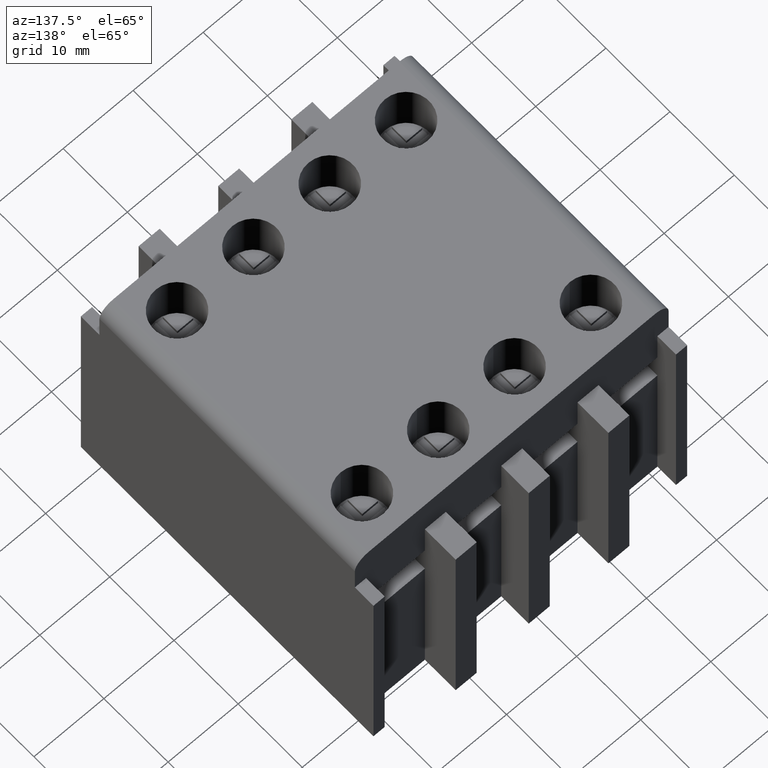
[diagram: clean part render]
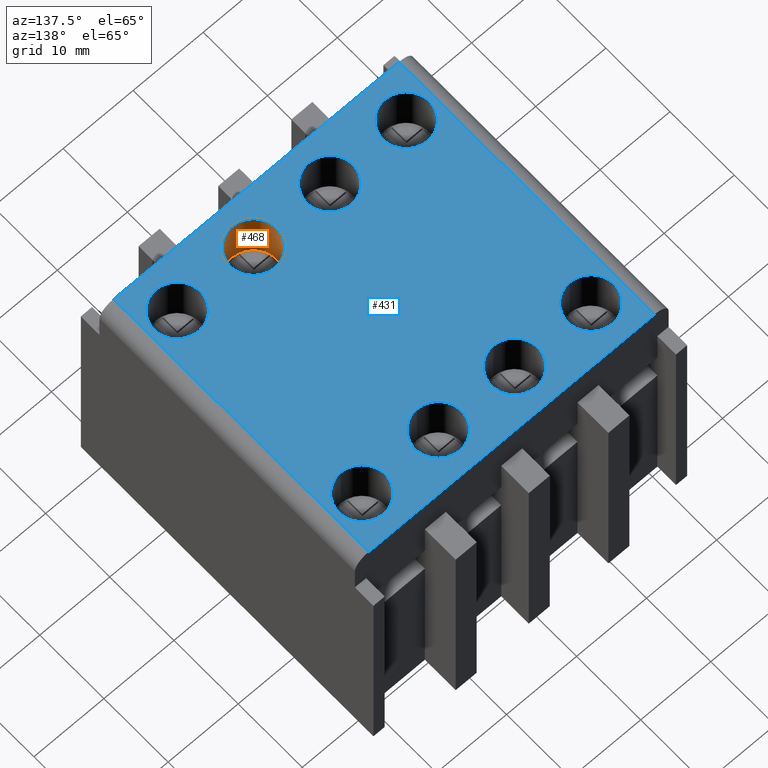
[diagram: same view with the hole feature highlighted: cylindrical wall and planar end face, labeled with their STEP entity ids]
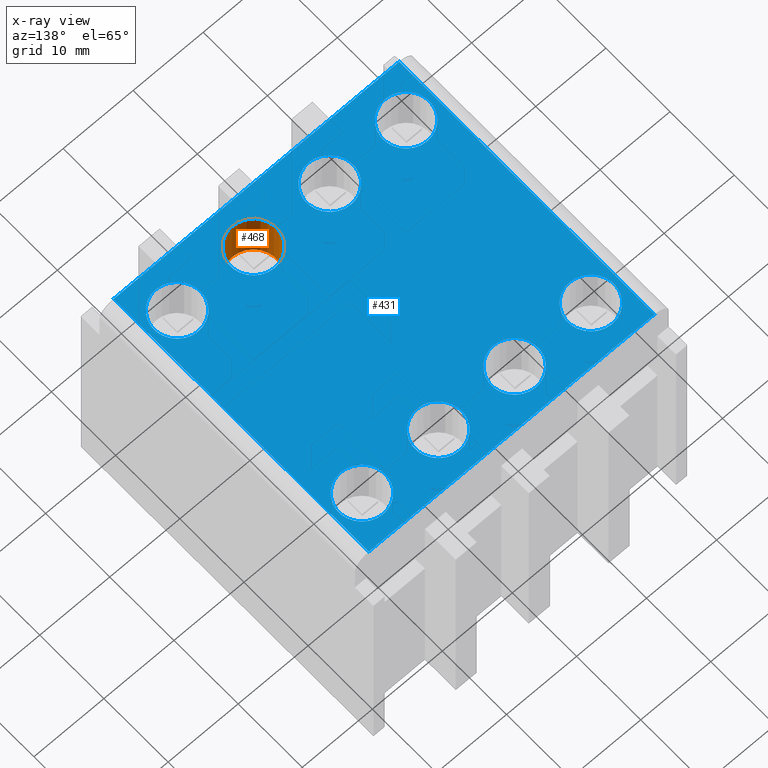
[diagram: x-ray of the same camera — body ghosted, the hole faces saturated]
A machine part, auxiliary view. The highlighted faces form one hole feature of diameter 6.6 mm: the cylindrical wall (entity #468, orange) and its adjacent planar end face (entity #431, blue) — they share a circular edge in the B-rep.
The next image is the same camera in x-ray (body ghosted, the hole faces saturated) — the bore reads through the body.
Wall:
#100=CYLINDRICAL_SURFACE('',#4622,3.3);
#330=CIRCLE('',#4559,3.3);
#341=CIRCLE('',#4574,3.3);
#468=ADVANCED_FACE('',(#911,#912),#100,.F.);
#911=FACE_BOUND('',#1055,.T.);
#912=FACE_BOUND('',#1056,.T.);
#1055=EDGE_LOOP('',(#1619));
#1056=EDGE_LOOP('',(#1620));
#1619=ORIENTED_EDGE('',*,*,#3039,.F.);
#1620=ORIENTED_EDGE('',*,*,#3054,.T.);
#2619=VERTEX_POINT('',#6328);
#2634=VERTEX_POINT('',#6362);
#3039=EDGE_CURVE('',#2619,#2619,#330,.T.);
#3054=EDGE_CURVE('',#2634,#2634,#341,.T.);
#4559=AXIS2_PLACEMENT_3D('',#6327,#5039,#5040);
#4574=AXIS2_PLACEMENT_3D('',#6361,#5073,#5074);
#4622=AXIS2_PLACEMENT_3D('',#6542,#5249,#5250);
#5039=DIRECTION('',(0.,0.,1.));
#5040=DIRECTION('',(0.,1.,0.));
#5073=DIRECTION('',(0.,0.,1.));
#5074=DIRECTION('',(0.,1.,0.));
#5249=DIRECTION('',(0.,0.,1.));
#5250=DIRECTION('',(1.,0.,0.));
#6327=CARTESIAN_POINT('',(5.45,-14.4,106.3));
#6328=CARTESIAN_POINT('',(5.45,-11.1,106.3));
#6361=CARTESIAN_POINT('',(5.45,-14.4,114.));
#6362=CARTESIAN_POINT('',(5.45,-11.1,114.));
#6542=CARTESIAN_POINT('',(5.45,-14.4,106.3));
End face:
#338=CIRCLE('',#4571,3.29999999999999);
#339=CIRCLE('',#4572,3.3);
#340=CIRCLE('',#4573,3.3);
#341=CIRCLE('',#4574,3.3);
#342=CIRCLE('',#4575,3.29999999999999);
#343=CIRCLE('',#4576,3.3);
#344=CIRCLE('',#4577,3.3);
#345=CIRCLE('',#4578,3.3);
#431=ADVANCED_FACE('',(#888,#889,#890,#891,#892,#893,#894,#895,#896),#668,
 .F.);
#668=PLANE('',#4579);
#888=FACE_BOUND('',#1003,.T.);
#889=FACE_BOUND('',#1004,.T.);
#890=FACE_BOUND('',#1005,.T.);
#891=FACE_BOUND('',#1006,.T.);
#892=FACE_BOUND('',#1007,.T.);
#893=FACE_BOUND('',#1008,.T.);
#894=FACE_BOUND('',#1009,.T.);
#895=FACE_BOUND('',#1010,.T.);
#896=FACE_BOUND('',#1011,.T.);
#1003=EDGE_LOOP('',(#1407));
#1004=EDGE_LOOP('',(#1408));
#1005=EDGE_LOOP('',(#1409,#1410,#1411,#1412));
#1006=EDGE_LOOP('',(#1413));
#1007=EDGE_LOOP('',(#1414));
#1008=EDGE_LOOP('',(#1415));
#1009=EDGE_LOOP('',(#1416));
#1010=EDGE_LOOP('',(#1417));
#1011=EDGE_LOOP('',(#1418));
#1407=ORIENTED_EDGE('',*,*,#3047,.F.);
#1408=ORIENTED_EDGE('',*,*,#3048,.F.);
#1409=ORIENTED_EDGE('',*,*,#3049,.F.);
#1410=ORIENTED_EDGE('',*,*,#3050,.T.);
#1411=ORIENTED_EDGE('',*,*,#3051,.T.);
#1412=ORIENTED_EDGE('',*,*,#3052,.T.);
#1413=ORIENTED_EDGE('',*,*,#3053,.F.);
#1414=ORIENTED_EDGE('',*,*,#3054,.F.);
#1415=ORIENTED_EDGE('',*,*,#3055,.T.);
#1416=ORIENTED_EDGE('',*,*,#3056,.T.);
#1417=ORIENTED_EDGE('',*,*,#3057,.T.);
#1418=ORIENTED_EDGE('',*,*,#3058,.T.);
#2627=VERTEX_POINT('',#6348);
#2628=VERTEX_POINT('',#6350);
#2629=VERTEX_POINT('',#6352);
#2630=VERTEX_POINT('',#6353);
#2631=VERTEX_POINT('',#6355);
#2632=VERTEX_POINT('',#6357);
#2633=VERTEX_POINT('',#6360);
#2634=VERTEX_POINT('',#6362);
#2635=VERTEX_POINT('',#6364);
#2636=VERTEX_POINT('',#6366);
#2637=VERTEX_POINT('',#6368);
#2638=VERTEX_POINT('',#6370);
#3047=EDGE_CURVE('',#2627,#2627,#338,.T.);
#3048=EDGE_CURVE('',#2628,#2628,#339,.T.);
#3049=EDGE_CURVE('',#2629,#2630,#3629,.T.);
#3050=EDGE_CURVE('',#2629,#2631,#3630,.T.);
#3051=EDGE_CURVE('',#2631,#2632,#3631,.T.);
#3052=EDGE_CURVE('',#2632,#2630,#3632,.T.);
#3053=EDGE_CURVE('',#2633,#2633,#340,.T.);
#3054=EDGE_CURVE('',#2634,#2634,#341,.T.);
#3055=EDGE_CURVE('',#2635,#2635,#342,.T.);
#3056=EDGE_CURVE('',#2636,#2636,#343,.T.);
#3057=EDGE_CURVE('',#2637,#2637,#344,.T.);
#3058=EDGE_CURVE('',#2638,#2638,#345,.T.);
#3629=LINE('',#6351,#4131);
#3630=LINE('',#6354,#4132);
#3631=LINE('',#6356,#4133);
#3632=LINE('',#6358,#4134);
#4131=VECTOR('',#5067,1.);
#4132=VECTOR('',#5068,1.);
#4133=VECTOR('',#5069,1.);
#4134=VECTOR('',#5070,1.);
#4571=AXIS2_PLACEMENT_3D('',#6347,#5063,#5064);
#4572=AXIS2_PLACEMENT_3D('',#6349,#5065,#5066);
#4573=AXIS2_PLACEMENT_3D('',#6359,#5071,#5072);
#4574=AXIS2_PLACEMENT_3D('',#6361,#5073,#5074);
#4575=AXIS2_PLACEMENT_3D('',#6363,#5075,#5076);
#4576=AXIS2_PLACEMENT_3D('',#6365,#5077,#5078);
#4577=AXIS2_PLACEMENT_3D('',#6367,#5079,#5080);
#4578=AXIS2_PLACEMENT_3D('',#6369,#5081,#5082);
#4579=AXIS2_PLACEMENT_3D('',#6371,#5083,#5084);
#5063=DIRECTION('',(0.,0.,1.));
#5064=DIRECTION('',(0.,1.,0.));
#5065=DIRECTION('',(0.,0.,1.));
#5066=DIRECTION('',(0.,1.,0.));
#5067=DIRECTION('',(1.,0.,0.));
#5068=DIRECTION('',(0.,-1.,0.));
#5069=DIRECTION('',(1.,0.,0.));
#5070=DIRECTION('',(0.,1.,0.));
#5071=DIRECTION('',(0.,0.,1.));
#5072=DIRECTION('',(0.,1.,0.));
#5073=DIRECTION('',(0.,0.,1.));
#5074=DIRECTION('',(0.,1.,0.));
#5075=DIRECTION('',(0.,-5.52326749582304E-014,-1.));
#5076=DIRECTION('',(0.,-1.,5.46700731822995E-014));
#5077=DIRECTION('',(0.,-5.52326749582304E-014,-1.));
#5078=DIRECTION('',(0.,-1.,5.46700731822993E-014));
#5079=DIRECTION('',(0.,-5.52326749582304E-014,-1.));
#5080=DIRECTION('',(0.,-1.,5.46700731822993E-014));
#5081=DIRECTION('',(0.,-5.52326749582304E-014,-1.));
#5082=DIRECTION('',(0.,-1.,5.46700731822993E-014));
#5083=DIRECTION('',(0.,0.,-1.));
#5084=DIRECTION('',(-1.,0.,0.));
#6347=CARTESIAN_POINT('',(16.35,-14.4,114.));
#6348=CARTESIAN_POINT('',(16.35,-11.1,114.));
#6349=CARTESIAN_POINT('',(-16.35,-14.4,114.));
#6350=CARTESIAN_POINT('',(-16.35,-11.1,114.));
#6351=CARTESIAN_POINT('',(-22.4,19.9000000000062,113.999999999999));
#6352=CARTESIAN_POINT('',(-20.4,19.9000000000062,113.999999999999));
#6353=CARTESIAN_POINT('',(20.4,19.9000000000062,113.999999999999));
#6354=CARTESIAN_POINT('',(-20.4,-19.9,114.));
#6355=CARTESIAN_POINT('',(-20.4,-19.9,114.));
#6356=CARTESIAN_POINT('',(-22.4,-19.9,114.));
#6357=CARTESIAN_POINT('',(20.4,-19.9,114.));
#6358=CARTESIAN_POINT('',(20.4,-19.9,114.));
#6359=CARTESIAN_POINT('',(-5.45,-14.4,114.));
#6360=CARTESIAN_POINT('',(-5.45,-11.1,114.));
#6361=CARTESIAN_POINT('',(5.45,-14.4,114.));
#6362=CARTESIAN_POINT('',(5.45,-11.1,114.));
#6363=CARTESIAN_POINT('',(16.35,14.4000000000062,113.999999999999));
#6364=CARTESIAN_POINT('',(16.35,11.1000000000063,113.999999999999));
#6365=CARTESIAN_POINT('',(-16.35,14.4000000000063,113.999999999999));
#6366=CARTESIAN_POINT('',(-16.35,11.1000000000063,113.999999999999));
#6367=CARTESIAN_POINT('',(-5.45,14.4000000000063,113.999999999999));
#6368=CARTESIAN_POINT('',(-5.45,11.1000000000063,113.999999999999));
#6369=CARTESIAN_POINT('',(5.45,14.4000000000063,113.999999999999));
#6370=CARTESIAN_POINT('',(5.45,11.1000000000063,113.999999999999));
#6371=CARTESIAN_POINT('',(-22.4,-19.9,114.));